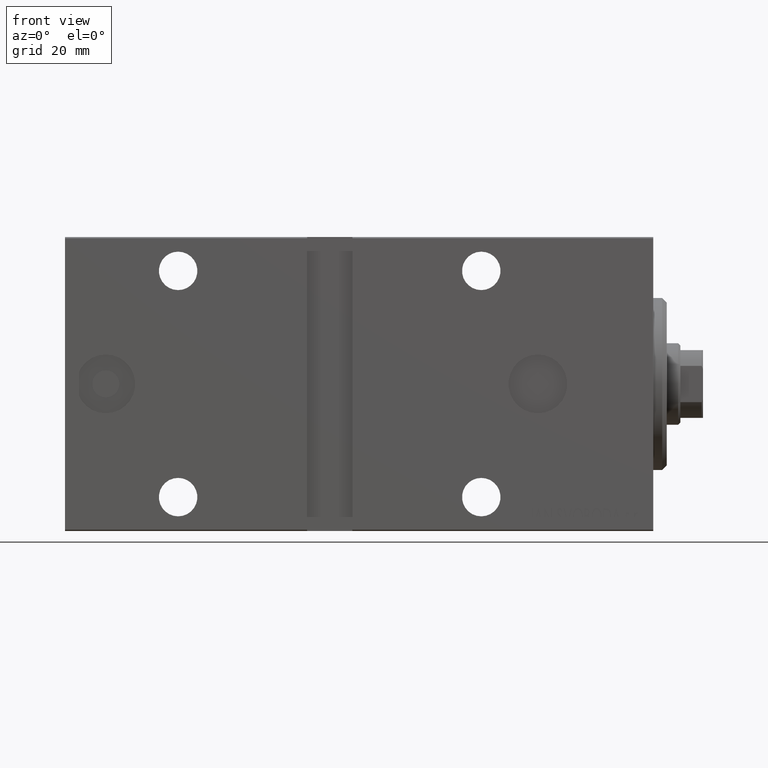
[diagram: clean part render]
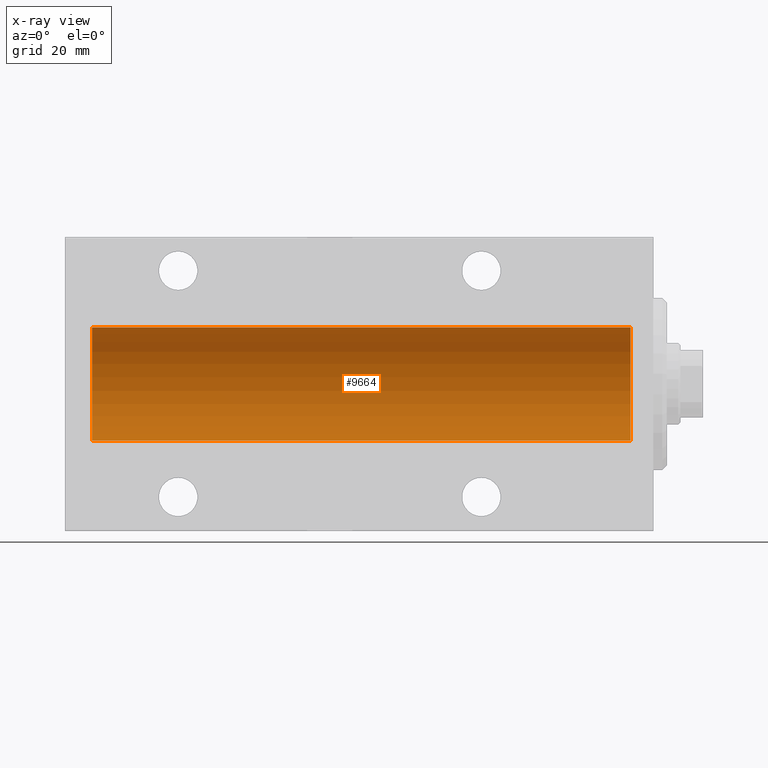
[diagram: x-ray — body ghosted, one internal face saturated and labeled with its STEP entity id]
A machine part, front view, then the same camera in x-ray: the body is ghosted and one INTERNAL B-rep face — a face not visible from any outside direction — is saturated and labeled: STEP entity #9664.
In plain terms, the highlighted cylindrical surface (partial cylindrical patch) has radius 12.5 mm, axis along (1, 0, -0).
Its self-contained STEP definition (entity closure, byte-faithful):
#978 = ORIENTED_EDGE ( 'NONE', *, *, #8901, .F. ) ;
#3140 = VECTOR ( 'NONE', #8372, 1000.000000000000000 ) ;
#3854 = EDGE_LOOP ( 'NONE', ( #978, #17388, #7529, #30361 ) ) ;
#4351 = CARTESIAN_POINT ( 'NONE',  ( 124.0000000000000000, 0.000000000000000000, 12.50000000000000000 ) ) ;
#5451 = DIRECTION ( 'NONE',  ( 0.000000000000000000, 0.000000000000000000, 1.000000000000000000 ) ) ;
#5578 = DIRECTION ( 'NONE',  ( 0.000000000000000000, 0.000000000000000000, 1.000000000000000000 ) ) ;
#6986 = EDGE_CURVE ( 'NONE', #42084, #31827, #19623, .T. ) ;
#7529 = ORIENTED_EDGE ( 'NONE', *, *, #29421, .T. ) ;
#8372 = DIRECTION ( 'NONE',  ( -1.000000000000000000, -0.000000000000000000, -0.000000000000000000 ) ) ;
#8901 = EDGE_CURVE ( 'NONE', #42084, #10736, #39784, .T. ) ;
#9603 = CARTESIAN_POINT ( 'NONE',  ( 5.000000000000004441, 1.530808498934191521E-15, -12.50000000000000000 ) ) ;
#9664 = ADVANCED_FACE ( 'NONE', ( #29390 ), #19854, .F. ) ;
#9880 = CARTESIAN_POINT ( 'NONE',  ( 124.0000000000000000, 1.530808498934191521E-15, -12.50000000000000000 ) ) ;
#10736 = VERTEX_POINT ( 'NONE', #4351 ) ;
#11402 = CARTESIAN_POINT ( 'NONE',  ( 5.000000000000004441, 0.000000000000000000, 12.50000000000000000 ) ) ;
#12672 = AXIS2_PLACEMENT_3D ( 'NONE', #39379, #36554, #13129 ) ;
#13129 = DIRECTION ( 'NONE',  ( 0.000000000000000000, 0.000000000000000000, 1.000000000000000000 ) ) ;
#13325 = CARTESIAN_POINT ( 'NONE',  ( 124.0000000000000000, 1.530808498934191521E-15, -12.50000000000000000 ) ) ;
#14869 = LINE ( 'NONE', #31362, #3140 ) ;
#17388 = ORIENTED_EDGE ( 'NONE', *, *, #6986, .T. ) ;
#18806 = DIRECTION ( 'NONE',  ( -1.000000000000000000, 0.000000000000000000, 0.000000000000000000 ) ) ;
#19623 = LINE ( 'NONE', #13325, #32823 ) ;
#19854 = CYLINDRICAL_SURFACE ( 'NONE', #12672, 12.50000000000000000 ) ;
#20266 = DIRECTION ( 'NONE',  ( -1.000000000000000000, -0.000000000000000000, -0.000000000000000000 ) ) ;
#21073 = AXIS2_PLACEMENT_3D ( 'NONE', #22568, #38627, #5451 ) ;
#22072 = CARTESIAN_POINT ( 'NONE',  ( 5.000000000000004441, 0.000000000000000000, 0.000000000000000000 ) ) ;
#22568 = CARTESIAN_POINT ( 'NONE',  ( 124.0000000000000000, 0.000000000000000000, 0.000000000000000000 ) ) ;
#29390 = FACE_OUTER_BOUND ( 'NONE', #3854, .T. ) ;
#29421 = EDGE_CURVE ( 'NONE', #31827, #36553, #37290, .T. ) ;
#30361 = ORIENTED_EDGE ( 'NONE', *, *, #38435, .F. ) ;
#31362 = CARTESIAN_POINT ( 'NONE',  ( 124.0000000000000000, 0.000000000000000000, 12.50000000000000000 ) ) ;
#31827 = VERTEX_POINT ( 'NONE', #9603 ) ;
#32823 = VECTOR ( 'NONE', #20266, 1000.000000000000000 ) ;
#36553 = VERTEX_POINT ( 'NONE', #11402 ) ;
#36554 = DIRECTION ( 'NONE',  ( -1.000000000000000000, -0.000000000000000000, -0.000000000000000000 ) ) ;
#37290 = CIRCLE ( 'NONE', #40768, 12.50000000000000000 ) ;
#38435 = EDGE_CURVE ( 'NONE', #10736, #36553, #14869, .T. ) ;
#38627 = DIRECTION ( 'NONE',  ( -1.000000000000000000, 0.000000000000000000, 0.000000000000000000 ) ) ;
#39379 = CARTESIAN_POINT ( 'NONE',  ( 124.0000000000000000, 0.000000000000000000, 0.000000000000000000 ) ) ;
#39784 = CIRCLE ( 'NONE', #21073, 12.50000000000000000 ) ;
#40768 = AXIS2_PLACEMENT_3D ( 'NONE', #22072, #18806, #5578 ) ;
#42084 = VERTEX_POINT ( 'NONE', #9880 ) ;